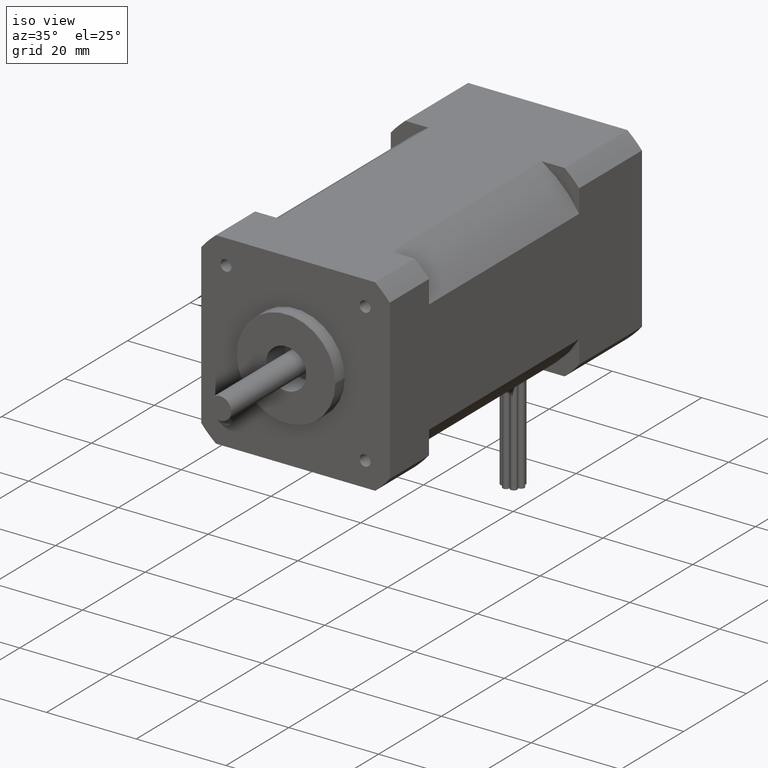
[diagram: clean part render]
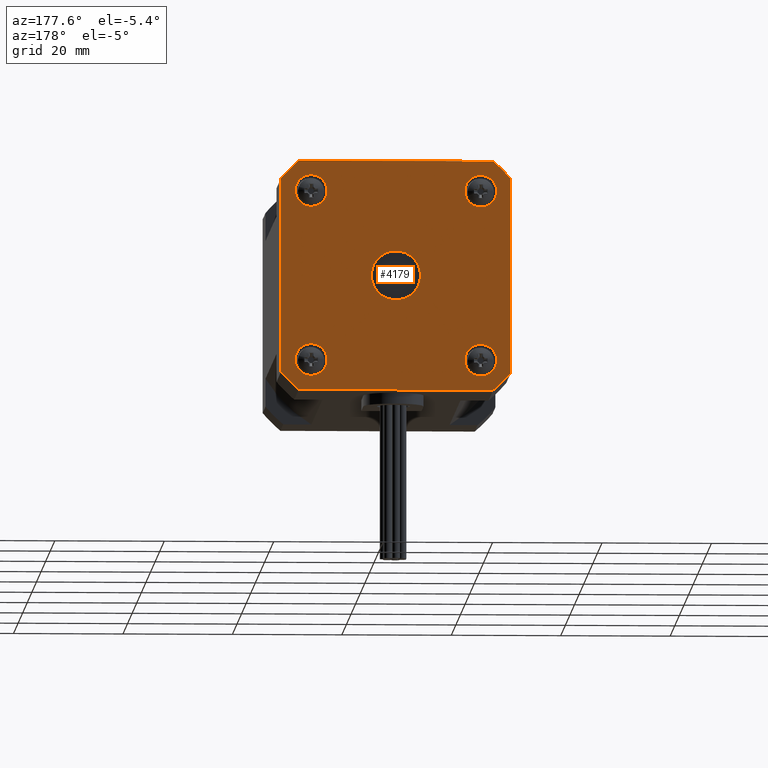
[diagram: tour spotlight — one face highlighted and labeled with its STEP entity id]
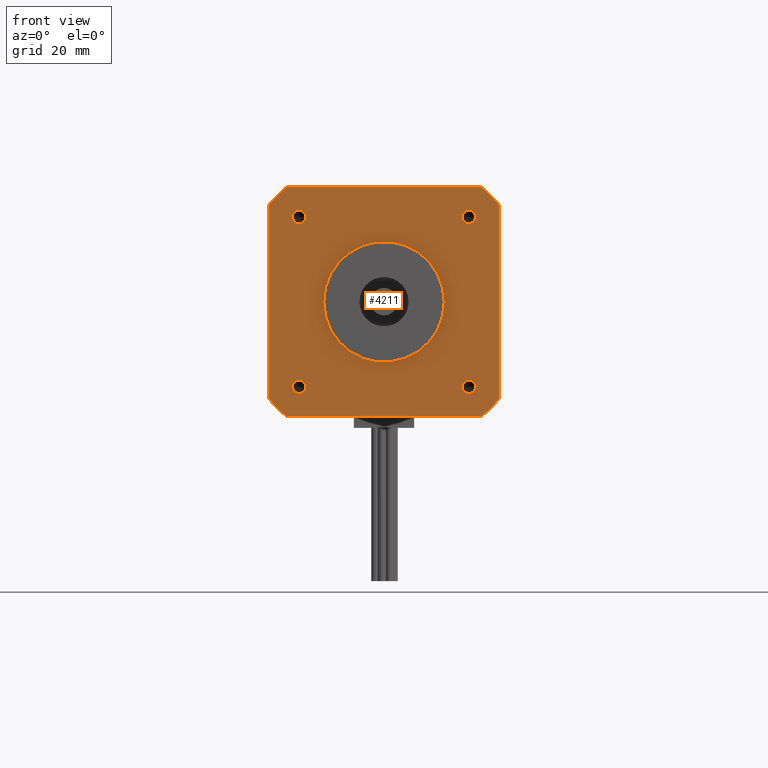
[diagram: tour spotlight — one face highlighted and labeled with its STEP entity id]
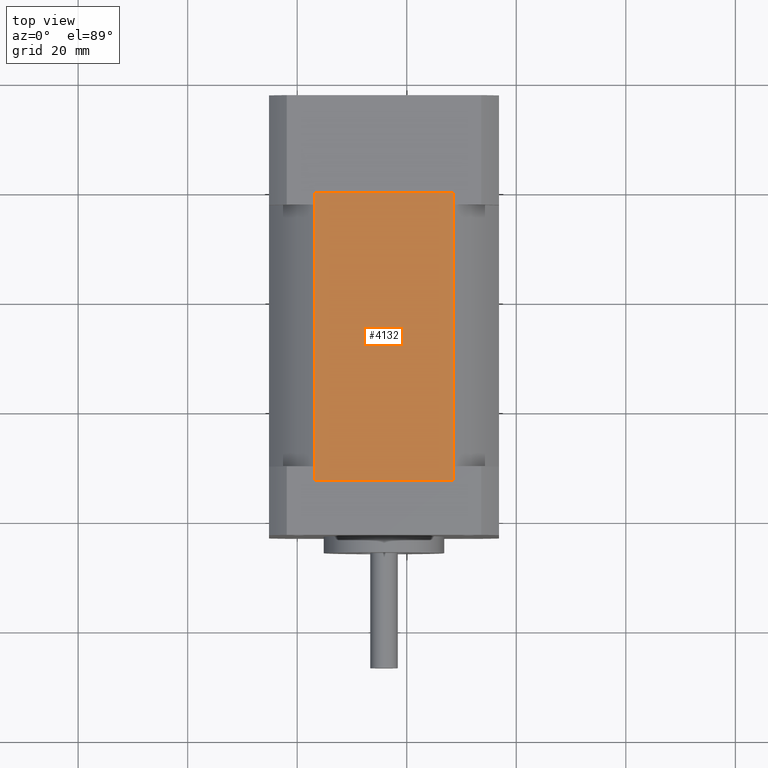
[diagram: tour spotlight — one face highlighted and labeled with its STEP entity id]
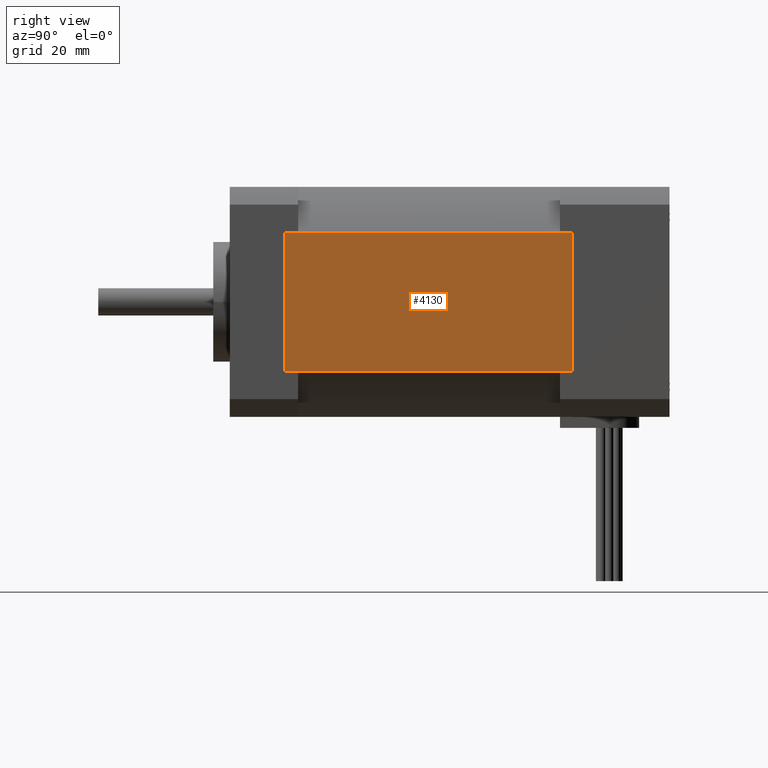
[diagram: tour spotlight — one face highlighted and labeled with its STEP entity id]
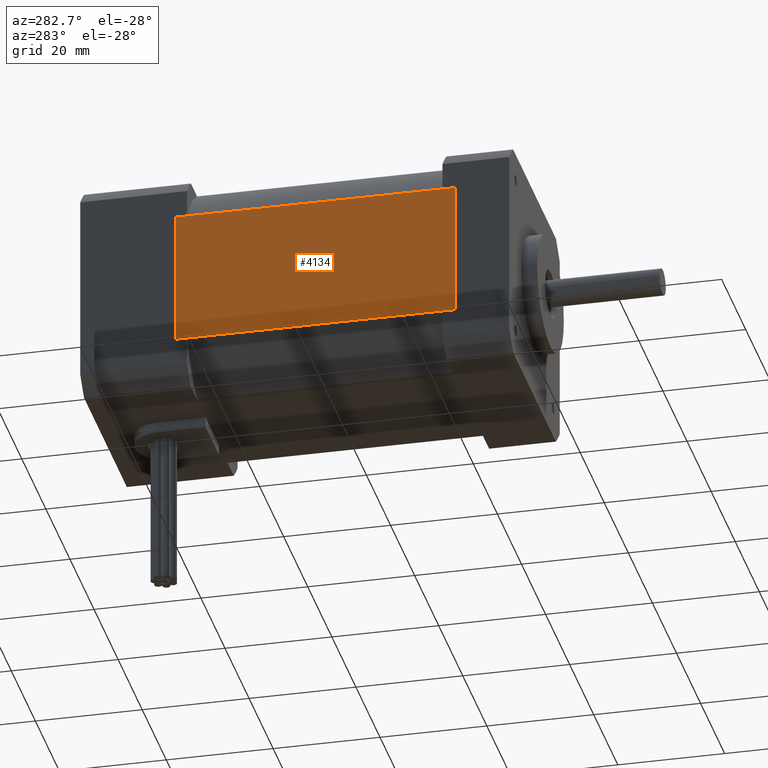
[diagram: tour spotlight — one face highlighted and labeled with its STEP entity id]
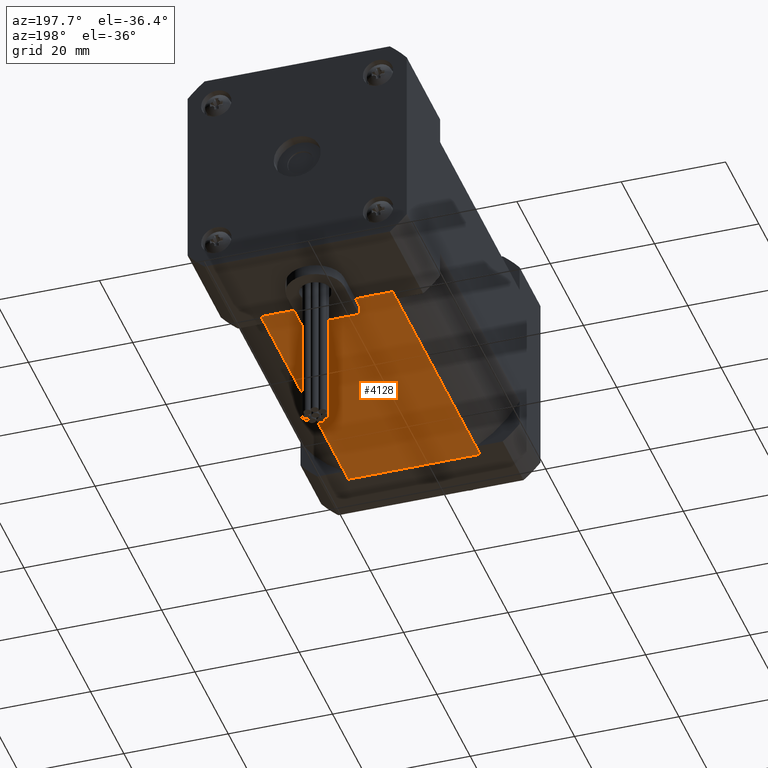
[diagram: tour spotlight — one face highlighted and labeled with its STEP entity id]
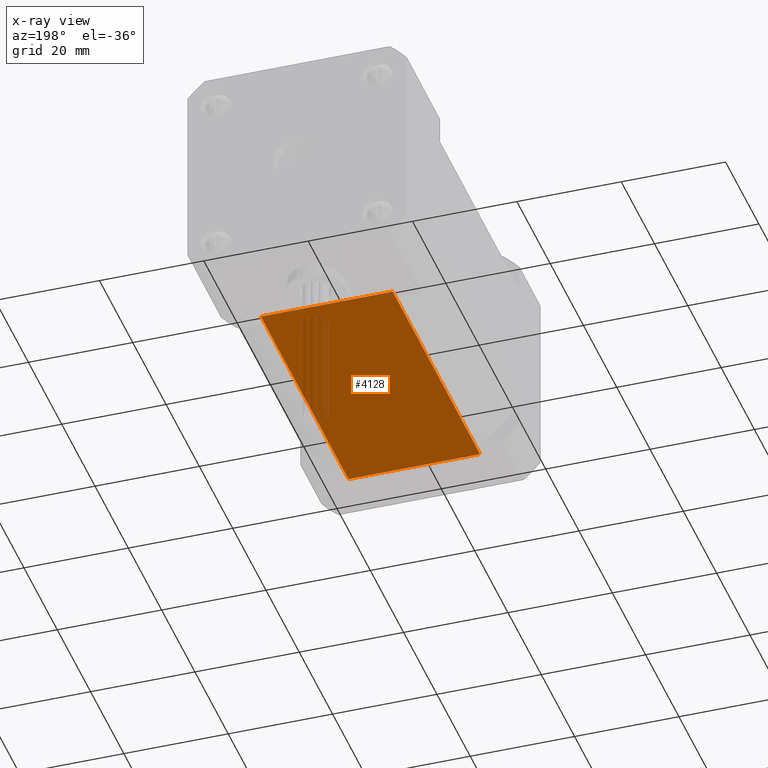
[diagram: x-ray of the same camera — body ghosted, this tour face saturated]
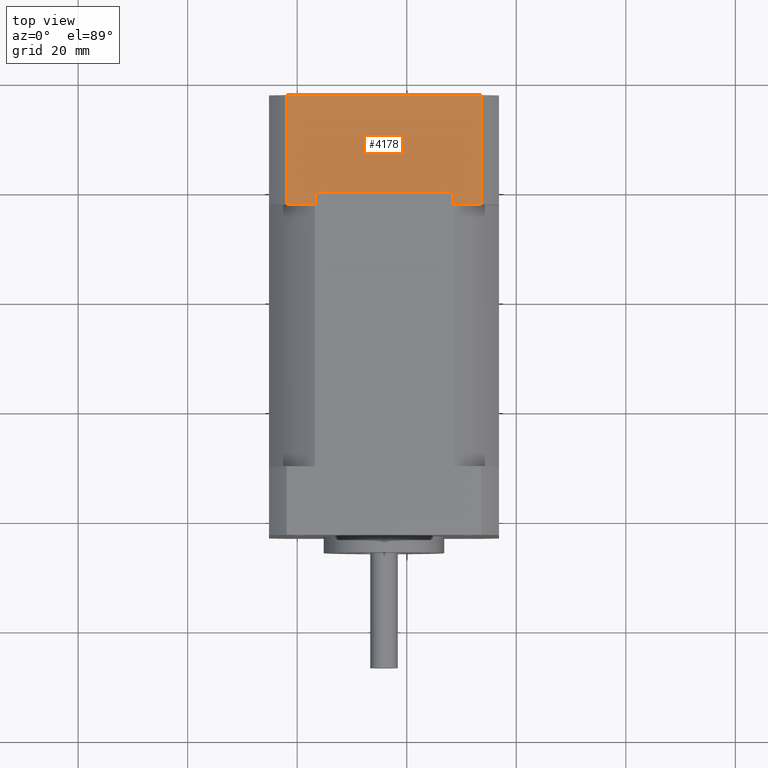
[diagram: tour spotlight — one face highlighted and labeled with its STEP entity id]
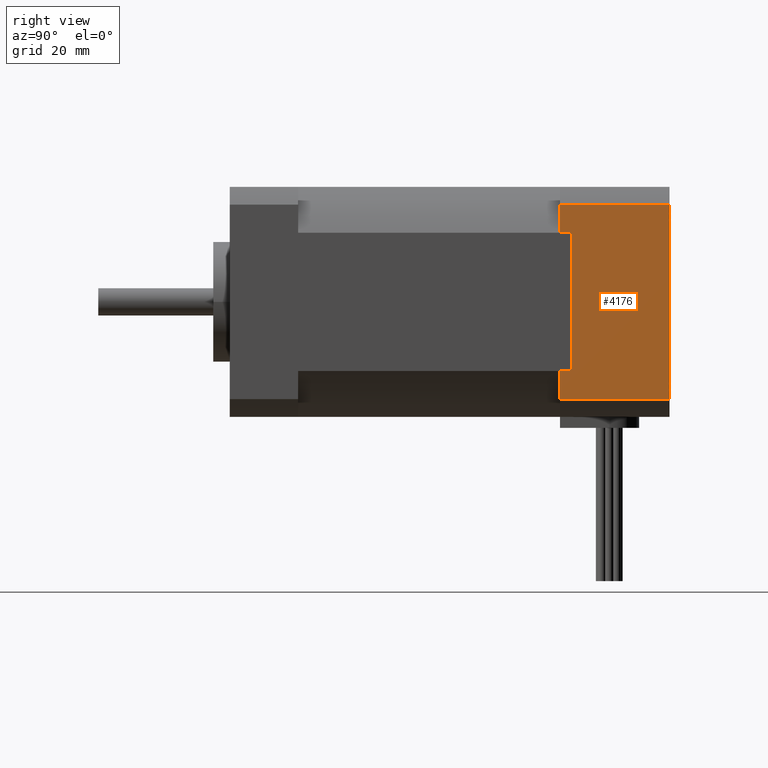
[diagram: tour spotlight — one face highlighted and labeled with its STEP entity id]
A machine part: a face-by-face anatomy tour. The part has 262 B-rep faces; the first image is the clean iso view, then the 8 largest visible faces are spotlighted one at a time (largest first), each with its STEP entity span.

Face 1 — auxiliary view, entity #4179. In plain terms, the highlighted planar face has unit normal (0, 1, -0).
Definition (entity closure, byte-faithful):
#224=PLANE('',#4510);
#374=LINE('',#6392,#596);
#379=LINE('',#6402,#601);
#388=LINE('',#6433,#610);
#391=LINE('',#6440,#613);
#596=VECTOR('',#5145,3.55105618091294);
#601=VECTOR('',#5152,3.55105618091294);
#610=VECTOR('',#5189,3.55105618091294);
#613=VECTOR('',#5198,3.55105618091294);
#800=FACE_BOUND('',#1202,.T.);
#801=FACE_BOUND('',#1203,.T.);
#802=FACE_BOUND('',#1204,.T.);
#803=FACE_BOUND('',#1205,.T.);
#804=FACE_BOUND('',#1206,.T.);
#913=FACE_OUTER_BOUND('',#1201,.T.);
#1201=EDGE_LOOP('',(#2885,#2886,#2887,#2888,#2889,#2890,#2891,#2892));
#1202=EDGE_LOOP('',(#2893));
#1203=EDGE_LOOP('',(#2894));
#1204=EDGE_LOOP('',(#2895));
#1205=EDGE_LOOP('',(#2896));
#1206=EDGE_LOOP('',(#2897));
#1488=CIRCLE('',#4447,0.29);
#1492=CIRCLE('',#4454,0.29);
#1496=CIRCLE('',#4461,0.29);
#1500=CIRCLE('',#4468,0.29);
#1503=CIRCLE('',#4473,0.45);
#1517=CIRCLE('',#4500,2.75);
#1518=CIRCLE('',#4502,2.75);
#1520=CIRCLE('',#4505,2.75);
#1521=CIRCLE('',#4508,2.75);
#1746=VERTEX_POINT('',#6295);
#1750=VERTEX_POINT('',#6306);
#1754=VERTEX_POINT('',#6317);
#1758=VERTEX_POINT('',#6328);
#1761=VERTEX_POINT('',#6336);
#1781=VERTEX_POINT('',#6389);
#1782=VERTEX_POINT('',#6391);
#1785=VERTEX_POINT('',#6399);
#1786=VERTEX_POINT('',#6401);
#1791=VERTEX_POINT('',#6419);
#1793=VERTEX_POINT('',#6427);
#1794=VERTEX_POINT('',#6432);
#1795=VERTEX_POINT('',#6436);
#2161=EDGE_CURVE('',#1746,#1746,#1488,.T.);
#2165=EDGE_CURVE('',#1750,#1750,#1492,.T.);
#2169=EDGE_CURVE('',#1754,#1754,#1496,.T.);
#2173=EDGE_CURVE('',#1758,#1758,#1500,.T.);
#2176=EDGE_CURVE('',#1761,#1761,#1503,.T.);
#2202=EDGE_CURVE('',#1782,#1781,#374,.T.);
#2207=EDGE_CURVE('',#1786,#1785,#379,.T.);
#2217=EDGE_CURVE('',#1785,#1791,#1517,.T.);
#2218=EDGE_CURVE('',#1781,#1786,#1518,.T.);
#2220=EDGE_CURVE('',#1793,#1782,#1520,.T.);
#2223=EDGE_CURVE('',#1794,#1793,#388,.T.);
#2225=EDGE_CURVE('',#1795,#1794,#1521,.T.);
#2227=EDGE_CURVE('',#1791,#1795,#391,.T.);
#2885=ORIENTED_EDGE('',*,*,#2227,.T.);
#2886=ORIENTED_EDGE('',*,*,#2225,.T.);
#2887=ORIENTED_EDGE('',*,*,#2223,.T.);
#2888=ORIENTED_EDGE('',*,*,#2220,.T.);
#2889=ORIENTED_EDGE('',*,*,#2202,.T.);
#2890=ORIENTED_EDGE('',*,*,#2218,.T.);
#2891=ORIENTED_EDGE('',*,*,#2207,.T.);
#2892=ORIENTED_EDGE('',*,*,#2217,.T.);
#2893=ORIENTED_EDGE('',*,*,#2161,.T.);
#2894=ORIENTED_EDGE('',*,*,#2165,.T.);
#2895=ORIENTED_EDGE('',*,*,#2169,.T.);
#2896=ORIENTED_EDGE('',*,*,#2173,.T.);
#2897=ORIENTED_EDGE('',*,*,#2176,.T.);
#4179=ADVANCED_FACE('',(#913,#800,#801,#802,#803,#804),#224,.T.);
#4447=AXIS2_PLACEMENT_3D('',#6296,#5040,#5041);
#4454=AXIS2_PLACEMENT_3D('',#6307,#5054,#5055);
#4461=AXIS2_PLACEMENT_3D('',#6318,#5068,#5069);
#4468=AXIS2_PLACEMENT_3D('',#6329,#5082,#5083);
#4473=AXIS2_PLACEMENT_3D('',#6337,#5092,#5093);
#4500=AXIS2_PLACEMENT_3D('',#6421,#5173,#5174);
#4502=AXIS2_PLACEMENT_3D('',#6423,#5177,#5178);
#4505=AXIS2_PLACEMENT_3D('',#6428,#5183,#5184);
#4508=AXIS2_PLACEMENT_3D('',#6437,#5193,#5194);
#4510=AXIS2_PLACEMENT_3D('',#6441,#5199,#5200);
#5040=DIRECTION('center_axis',(-1.45477499778469E-16,-1.,1.24501532695106E-16));
#5041=DIRECTION('ref_axis',(1.,-1.45477499778469E-16,-1.66533453693774E-16));
#5054=DIRECTION('center_axis',(-1.45477499778469E-16,-1.,1.24501532695106E-16));
#5055=DIRECTION('ref_axis',(1.,-1.45477499778469E-16,-1.66533453693774E-16));
#5068=DIRECTION('center_axis',(-1.45477499778469E-16,-1.,1.24501532695106E-16));
#5069=DIRECTION('ref_axis',(1.,-1.45477499778469E-16,-1.66533453693774E-16));
#5082=DIRECTION('center_axis',(-1.45477499778469E-16,-1.,1.24501532695106E-16));
#5083=DIRECTION('ref_axis',(1.,-1.45477499778469E-16,-1.66533453693774E-16));
#5092=DIRECTION('center_axis',(-1.45477499778469E-16,-1.,1.24501532695106E-16));
#5093=DIRECTION('ref_axis',(-1.,1.45477499778469E-16,1.66533453693774E-16));
#5145=DIRECTION('',(-1.,1.45477499778469E-16,1.66533453693774E-16));
#5152=DIRECTION('',(1.66533453693774E-16,1.24501532695106E-16,1.));
#5173=DIRECTION('center_axis',(1.45477499778469E-16,1.,-1.24501532695106E-16));
#5174=DIRECTION('ref_axis',(-0.763636363636364,1.91475897505393E-16,0.645646578347808));
#5177=DIRECTION('center_axis',(1.45477499778469E-16,1.,-1.24501532695106E-16));
#5178=DIRECTION('ref_axis',(-0.645646578347808,-1.14684773588243E-18,-0.763636363636364));
#5183=DIRECTION('center_axis',(1.45477499778469E-16,1.,-1.24501532695106E-16));
#5184=DIRECTION('ref_axis',(0.763636363636364,-1.91475897505393E-16,-0.645646578347808));
#5189=DIRECTION('',(-1.66533453693774E-16,-1.24501532695106E-16,-1.));
#5193=DIRECTION('center_axis',(1.45477499778469E-16,1.,-1.24501532695106E-16));
#5194=DIRECTION('ref_axis',(0.645646578347808,1.14684773588243E-18,0.763636363636364));
#5198=DIRECTION('',(1.,-1.45477499778469E-16,-1.66533453693774E-16));
#5199=DIRECTION('center_axis',(1.45477499778469E-16,1.,-1.24501532695106E-16));
#5200=DIRECTION('ref_axis',(2.22044604925031E-16,0.,1.));
#6295=CARTESIAN_POINT('',(-1.67525995329898,5.69264350961966,-0.102197207720415));
#6296=CARTESIAN_POINT('Origin',(-1.96525995329898,5.69264350961966,-0.102197207720415));
#6306=CARTESIAN_POINT('',(1.42474004670102,5.69264350961966,2.99780279227958));
#6307=CARTESIAN_POINT('Origin',(1.13474004670102,5.69264350961966,2.99780279227959));
#6317=CARTESIAN_POINT('',(-1.67525995329898,5.69264350961966,2.99780279227959));
#6318=CARTESIAN_POINT('Origin',(-1.96525995329898,5.69264350961966,2.99780279227959));
#6328=CARTESIAN_POINT('',(1.42474004670102,5.69264350961966,-0.102197207720415));
#6329=CARTESIAN_POINT('Origin',(1.13474004670102,5.69264350961966,-0.102197207720415));
#6336=CARTESIAN_POINT('',(0.0347400467010235,5.69264350961966,1.44780279227958));
#6337=CARTESIAN_POINT('Origin',(-0.415259953298976,5.69264350961966,1.44780279227959));
#6389=CARTESIAN_POINT('',(-2.19078804375545,5.69264350961966,-0.652197207720415));
#6391=CARTESIAN_POINT('',(1.36026813715749,5.69264350961966,-0.652197207720415));
#6392=CARTESIAN_POINT('',(1.36026813715749,5.69264350961966,-0.652197207720415));
#6399=CARTESIAN_POINT('',(-2.51525995329898,5.69264350961966,3.22333088273606));
#6401=CARTESIAN_POINT('',(-2.51525995329898,5.69264350961966,-0.327725298176885));
#6402=CARTESIAN_POINT('',(-2.51525995329898,5.69264350961966,-0.327725298176885));
#6419=CARTESIAN_POINT('',(-2.19078804375545,5.69264350961966,3.54780279227959));
#6421=CARTESIAN_POINT('Origin',(-0.415259953298976,5.69264350961966,1.44780279227959));
#6423=CARTESIAN_POINT('Origin',(-0.415259953298976,5.69264350961966,1.44780279227959));
#6427=CARTESIAN_POINT('',(1.68474004670102,5.69264350961966,-0.327725298176886));
#6428=CARTESIAN_POINT('Origin',(-0.415259953298976,5.69264350961966,1.44780279227959));
#6432=CARTESIAN_POINT('',(1.68474004670102,5.69264350961966,3.22333088273605));
#6433=CARTESIAN_POINT('',(1.68474004670102,5.69264350961966,3.22333088273605));
#6436=CARTESIAN_POINT('',(1.36026813715749,5.69264350961966,3.54780279227958));
#6437=CARTESIAN_POINT('Origin',(-0.415259953298976,5.69264350961966,1.44780279227959));
#6440=CARTESIAN_POINT('',(-2.19078804375545,5.69264350961966,3.54780279227959));
#6441=CARTESIAN_POINT('Origin',(0.595050716264059,5.69264350961966,2.45811346184262));

Face 2 — front view, entity #4211. In plain terms, the highlighted planar face has unit normal (0, 1, -0).
Definition (entity closure, byte-faithful):
#237=PLANE('',#4572);
#406=LINE('',#6524,#628);
#411=LINE('',#6534,#633);
#421=LINE('',#6568,#643);
#423=LINE('',#6579,#645);
#628=VECTOR('',#5289,3.55105618091294);
#633=VECTOR('',#5296,3.55105618091294);
#643=VECTOR('',#5334,3.55105618091294);
#645=VECTOR('',#5352,3.55105618091294);
#815=FACE_BOUND('',#1249,.T.);
#816=FACE_BOUND('',#1250,.T.);
#817=FACE_BOUND('',#1251,.T.);
#818=FACE_BOUND('',#1252,.T.);
#819=FACE_BOUND('',#1253,.T.);
#945=FACE_OUTER_BOUND('',#1248,.T.);
#1248=EDGE_LOOP('',(#3013,#3014,#3015,#3016,#3017,#3018,#3019,#3020));
#1249=EDGE_LOOP('',(#3021));
#1250=EDGE_LOOP('',(#3022));
#1251=EDGE_LOOP('',(#3023));
#1252=EDGE_LOOP('',(#3024));
#1253=EDGE_LOOP('',(#3025));
#1523=CIRCLE('',#4515,0.12295);
#1525=CIRCLE('',#4519,0.12295);
#1527=CIRCLE('',#4523,0.12295);
#1529=CIRCLE('',#4527,0.12295);
#1546=CIRCLE('',#4558,1.1);
#1547=CIRCLE('',#4561,2.75);
#1548=CIRCLE('',#4564,2.75);
#1550=CIRCLE('',#4567,2.75);
#1551=CIRCLE('',#4569,2.75);
#1797=VERTEX_POINT('',#6447);
#1799=VERTEX_POINT('',#6453);
#1801=VERTEX_POINT('',#6459);
#1803=VERTEX_POINT('',#6465);
#1825=VERTEX_POINT('',#6521);
#1826=VERTEX_POINT('',#6523);
#1829=VERTEX_POINT('',#6531);
#1830=VERTEX_POINT('',#6533);
#1836=VERTEX_POINT('',#6554);
#1837=VERTEX_POINT('',#6558);
#1838=VERTEX_POINT('',#6559);
#1840=VERTEX_POINT('',#6566);
#1841=VERTEX_POINT('',#6575);
#2229=EDGE_CURVE('',#1797,#1797,#1523,.T.);
#2231=EDGE_CURVE('',#1799,#1799,#1525,.T.);
#2233=EDGE_CURVE('',#1801,#1801,#1527,.T.);
#2235=EDGE_CURVE('',#1803,#1803,#1529,.T.);
#2262=EDGE_CURVE('',#1825,#1826,#406,.T.);
#2267=EDGE_CURVE('',#1829,#1830,#411,.T.);
#2277=EDGE_CURVE('',#1836,#1836,#1546,.T.);
#2278=EDGE_CURVE('',#1837,#1838,#1547,.T.);
#2283=EDGE_CURVE('',#1840,#1837,#421,.T.);
#2284=EDGE_CURVE('',#1826,#1840,#1548,.T.);
#2286=EDGE_CURVE('',#1830,#1825,#1550,.T.);
#2287=EDGE_CURVE('',#1841,#1829,#1551,.T.);
#2289=EDGE_CURVE('',#1838,#1841,#423,.T.);
#3013=ORIENTED_EDGE('',*,*,#2289,.F.);
#3014=ORIENTED_EDGE('',*,*,#2278,.F.);
#3015=ORIENTED_EDGE('',*,*,#2283,.F.);
#3016=ORIENTED_EDGE('',*,*,#2284,.F.);
#3017=ORIENTED_EDGE('',*,*,#2262,.F.);
#3018=ORIENTED_EDGE('',*,*,#2286,.F.);
#3019=ORIENTED_EDGE('',*,*,#2267,.F.);
#3020=ORIENTED_EDGE('',*,*,#2287,.F.);
#3021=ORIENTED_EDGE('',*,*,#2229,.T.);
#3022=ORIENTED_EDGE('',*,*,#2231,.T.);
#3023=ORIENTED_EDGE('',*,*,#2233,.T.);
#3024=ORIENTED_EDGE('',*,*,#2235,.T.);
#3025=ORIENTED_EDGE('',*,*,#2277,.T.);
#4211=ADVANCED_FACE('',(#945,#815,#816,#817,#818,#819),#237,.F.);
#4515=AXIS2_PLACEMENT_3D('',#6448,#5209,#5210);
#4519=AXIS2_PLACEMENT_3D('',#6454,#5217,#5218);
#4523=AXIS2_PLACEMENT_3D('',#6460,#5225,#5226);
#4527=AXIS2_PLACEMENT_3D('',#6466,#5233,#5234);
#4558=AXIS2_PLACEMENT_3D('',#6555,#5320,#5321);
#4561=AXIS2_PLACEMENT_3D('',#6560,#5326,#5327);
#4564=AXIS2_PLACEMENT_3D('',#6570,#5337,#5338);
#4567=AXIS2_PLACEMENT_3D('',#6573,#5343,#5344);
#4569=AXIS2_PLACEMENT_3D('',#6576,#5347,#5348);
#4572=AXIS2_PLACEMENT_3D('',#6581,#5355,#5356);
#5209=DIRECTION('center_axis',(1.45477499778469E-16,1.,-1.24501532695106E-16));
#5210=DIRECTION('ref_axis',(1.,-1.45477499778469E-16,1.65869361839074E-32));
#5217=DIRECTION('center_axis',(1.45477499778469E-16,1.,-1.24501532695106E-16));
#5218=DIRECTION('ref_axis',(1.,-1.45477499778469E-16,1.65869361839074E-32));
#5225=DIRECTION('center_axis',(1.45477499778469E-16,1.,-1.24501532695106E-16));
#5226=DIRECTION('ref_axis',(1.,-1.45477499778469E-16,1.65869361839074E-32));
#5233=DIRECTION('center_axis',(1.45477499778469E-16,1.,-1.24501532695106E-16));
#5234=DIRECTION('ref_axis',(1.,-1.45477499778469E-16,1.65869361839074E-32));
#5289=DIRECTION('',(-1.,1.45477499778469E-16,-1.65869361839074E-32));
#5296=DIRECTION('',(-1.52523551116391E-33,-1.24501532695106E-16,-1.));
#5320=DIRECTION('center_axis',(1.45477499778469E-16,1.,-1.24501532695106E-16));
#5321=DIRECTION('ref_axis',(-1.,1.45477499778469E-16,-1.65869361839074E-32));
#5326=DIRECTION('center_axis',(1.45477499778469E-16,1.,-1.24501532695106E-16));
#5327=DIRECTION('ref_axis',(-0.763636363636364,1.91475897505393E-16,0.645646578347807));
#5334=DIRECTION('',(1.52523551116391E-33,1.24501532695106E-16,1.));
#5337=DIRECTION('center_axis',(1.45477499778469E-16,1.,-1.24501532695106E-16));
#5338=DIRECTION('ref_axis',(-0.645646578347808,-1.14684773588236E-18,-0.763636363636364));
#5343=DIRECTION('center_axis',(1.45477499778469E-16,1.,-1.24501532695106E-16));
#5344=DIRECTION('ref_axis',(0.763636363636364,-1.91475897505393E-16,-0.645646578347808));
#5347=DIRECTION('center_axis',(1.45477499778469E-16,1.,-1.24501532695106E-16));
#5348=DIRECTION('ref_axis',(0.645646578347808,1.14684773588236E-18,0.763636363636364));
#5352=DIRECTION('',(1.,-1.45477499778469E-16,1.65869361839074E-32));
#5355=DIRECTION('center_axis',(1.45477499778469E-16,1.,-1.24501532695106E-16));
#5356=DIRECTION('ref_axis',(0.,0.,1.));
#6447=CARTESIAN_POINT('',(1.25769004670102,-2.33735649038034,-0.102197207720413));
#6448=CARTESIAN_POINT('Origin',(1.13474004670102,-2.33735649038034,-0.102197207720413));
#6453=CARTESIAN_POINT('',(-1.84230995329898,-2.33735649038034,2.99780279227959));
#6454=CARTESIAN_POINT('Origin',(-1.96525995329898,-2.33735649038034,2.99780279227959));
#6459=CARTESIAN_POINT('',(1.25769004670102,-2.33735649038034,2.99780279227959));
#6460=CARTESIAN_POINT('Origin',(1.13474004670102,-2.33735649038034,2.99780279227959));
#6465=CARTESIAN_POINT('',(-1.84230995329898,-2.33735649038034,-0.102197207720413));
#6466=CARTESIAN_POINT('Origin',(-1.96525995329898,-2.33735649038034,-0.102197207720413));
#6521=CARTESIAN_POINT('',(1.36026813715749,-2.33735649038034,-0.652197207720413));
#6523=CARTESIAN_POINT('',(-2.19078804375545,-2.33735649038034,-0.652197207720413));
#6524=CARTESIAN_POINT('',(1.36026813715749,-2.33735649038034,-0.652197207720413));
#6531=CARTESIAN_POINT('',(1.68474004670102,-2.33735649038034,3.22333088273606));
#6533=CARTESIAN_POINT('',(1.68474004670102,-2.33735649038034,-0.327725298176884));
#6534=CARTESIAN_POINT('',(1.68474004670102,-2.33735649038034,3.22333088273606));
#6554=CARTESIAN_POINT('',(0.684740046701023,-2.33735649038034,1.44780279227959));
#6555=CARTESIAN_POINT('Origin',(-0.415259953298978,-2.33735649038034,1.44780279227959));
#6558=CARTESIAN_POINT('',(-2.51525995329898,-2.33735649038034,3.22333088273606));
#6559=CARTESIAN_POINT('',(-2.19078804375545,-2.33735649038034,3.54780279227959));
#6560=CARTESIAN_POINT('Origin',(-0.415259953298978,-2.33735649038034,1.44780279227959));
#6566=CARTESIAN_POINT('',(-2.51525995329898,-2.33735649038034,-0.327725298176884));
#6568=CARTESIAN_POINT('',(-2.51525995329898,-2.33735649038034,-0.327725298176884));
#6570=CARTESIAN_POINT('Origin',(-0.415259953298978,-2.33735649038034,1.44780279227959));
#6573=CARTESIAN_POINT('Origin',(-0.415259953298978,-2.33735649038034,1.44780279227959));
#6575=CARTESIAN_POINT('',(1.36026813715749,-2.33735649038034,3.54780279227959));
#6576=CARTESIAN_POINT('Origin',(-0.415259953298978,-2.33735649038034,1.44780279227959));
#6579=CARTESIAN_POINT('',(-2.19078804375545,-2.33735649038034,3.54780279227959));
#6581=CARTESIAN_POINT('Origin',(-0.415259953298977,-2.33735649038034,1.44780279227959));

Face 3 — top view, entity #4132. In plain terms, the highlighted planar face has unit normal (0, 0, 1).
Definition (entity closure, byte-faithful):
#199=PLANE('',#4419);
#339=LINE('',#6227,#561);
#340=LINE('',#6230,#562);
#341=LINE('',#6232,#563);
#342=LINE('',#6233,#564);
#561=VECTOR('',#4964,5.25);
#562=VECTOR('',#4967,2.52388589282479);
#563=VECTOR('',#4968,2.52388589282479);
#564=VECTOR('',#4969,5.25);
#866=FACE_OUTER_BOUND('',#1129,.T.);
#1129=EDGE_LOOP('',(#2696,#2697,#2698,#2699));
#1724=VERTEX_POINT('',#6223);
#1725=VERTEX_POINT('',#6225);
#1726=VERTEX_POINT('',#6229);
#1727=VERTEX_POINT('',#6231);
#2131=EDGE_CURVE('',#1724,#1725,#339,.T.);
#2132=EDGE_CURVE('',#1726,#1724,#340,.T.);
#2133=EDGE_CURVE('',#1727,#1725,#341,.T.);
#2134=EDGE_CURVE('',#1726,#1727,#342,.T.);
#2696=ORIENTED_EDGE('',*,*,#2132,.T.);
#2697=ORIENTED_EDGE('',*,*,#2131,.T.);
#2698=ORIENTED_EDGE('',*,*,#2133,.F.);
#2699=ORIENTED_EDGE('',*,*,#2134,.F.);
#4132=ADVANCED_FACE('',(#866),#199,.T.);
#4419=AXIS2_PLACEMENT_3D('',#6228,#4965,#4966);
#4964=DIRECTION('',(-6.0767174219161E-33,1.,-1.24501532695106E-16));
#4965=DIRECTION('center_axis',(3.51909102636196E-16,1.24501532695106E-16,
1.));
#4966=DIRECTION('ref_axis',(1.,0.,-4.44089209850063E-16));
#4967=DIRECTION('',(1.,-3.77365052256496E-32,-3.51909102636196E-16));
#4968=DIRECTION('',(1.,-3.77365052256496E-32,-3.51909102636196E-16));
#4969=DIRECTION('',(-6.0767174219161E-33,1.,-1.24501532695106E-16));
#6223=CARTESIAN_POINT('',(0.846682993113419,-1.33735649038034,3.54780279227959));
#6225=CARTESIAN_POINT('',(0.846682993113419,3.91264350961966,3.54780279227959));
#6227=CARTESIAN_POINT('',(0.846682993113419,-1.33735649038034,3.54780279227959));
#6228=CARTESIAN_POINT('Origin',(-1.67720289971137,-1.33735649038034,3.54780279227959));
#6229=CARTESIAN_POINT('',(-1.67720289971137,-1.33735649038034,3.54780279227959));
#6230=CARTESIAN_POINT('',(-1.67720289971137,-1.33735649038034,3.54780279227959));
#6231=CARTESIAN_POINT('',(-1.67720289971137,3.91264350961966,3.54780279227959));
#6232=CARTESIAN_POINT('',(-1.67720289971137,3.91264350961966,3.54780279227959));
#6233=CARTESIAN_POINT('',(-1.67720289971137,-1.33735649038034,3.54780279227959));

Face 4 — right view, entity #4130. In plain terms, the highlighted planar face has unit normal (1, -0, -0).
Definition (entity closure, byte-faithful):
#198=PLANE('',#4415);
#335=LINE('',#6215,#557);
#336=LINE('',#6218,#558);
#337=LINE('',#6220,#559);
#338=LINE('',#6221,#560);
#557=VECTOR('',#4952,5.25);
#558=VECTOR('',#4955,2.52388589282479);
#559=VECTOR('',#4956,2.52388589282479);
#560=VECTOR('',#4957,5.25);
#864=FACE_OUTER_BOUND('',#1127,.T.);
#1127=EDGE_LOOP('',(#2688,#2689,#2690,#2691));
#1720=VERTEX_POINT('',#6211);
#1721=VERTEX_POINT('',#6213);
#1722=VERTEX_POINT('',#6217);
#1723=VERTEX_POINT('',#6219);
#2125=EDGE_CURVE('',#1720,#1721,#335,.T.);
#2126=EDGE_CURVE('',#1722,#1720,#336,.T.);
#2127=EDGE_CURVE('',#1723,#1721,#337,.T.);
#2128=EDGE_CURVE('',#1722,#1723,#338,.T.);
#2688=ORIENTED_EDGE('',*,*,#2126,.T.);
#2689=ORIENTED_EDGE('',*,*,#2125,.T.);
#2690=ORIENTED_EDGE('',*,*,#2127,.F.);
#2691=ORIENTED_EDGE('',*,*,#2128,.F.);
#4130=ADVANCED_FACE('',(#864),#198,.T.);
#4415=AXIS2_PLACEMENT_3D('',#6216,#4953,#4954);
#4952=DIRECTION('',(-6.0767174219161E-33,1.,-1.24501532695106E-16));
#4953=DIRECTION('center_axis',(1.,-3.77365052256497E-32,-3.51909102636196E-16));
#4954=DIRECTION('ref_axis',(-4.44089209850063E-16,-2.22044604925031E-16,
-1.));
#4955=DIRECTION('',(-3.51909102636196E-16,-1.24501532695106E-16,-1.));
#4956=DIRECTION('',(-3.51909102636196E-16,-1.24501532695106E-16,-1.));
#4957=DIRECTION('',(-6.0767174219161E-33,1.,-1.24501532695106E-16));
#6211=CARTESIAN_POINT('',(1.68474004670102,-1.33735649038034,0.185859845867191));
#6213=CARTESIAN_POINT('',(1.68474004670102,3.91264350961966,0.185859845867191));
#6215=CARTESIAN_POINT('',(1.68474004670102,-1.33735649038034,0.185859845867191));
#6216=CARTESIAN_POINT('Origin',(1.68474004670102,-1.33735649038034,2.70974573869198));
#6217=CARTESIAN_POINT('',(1.68474004670102,-1.33735649038034,2.70974573869198));
#6218=CARTESIAN_POINT('',(1.68474004670102,-1.33735649038034,2.70974573869198));
#6219=CARTESIAN_POINT('',(1.68474004670102,3.91264350961966,2.70974573869198));
#6220=CARTESIAN_POINT('',(1.68474004670102,3.91264350961966,2.70974573869198));
#6221=CARTESIAN_POINT('',(1.68474004670102,-1.33735649038034,2.70974573869198));

Face 5 — auxiliary view, entity #4134. In plain terms, the highlighted planar face has unit normal (-1, 0, 0).
Definition (entity closure, byte-faithful):
#200=PLANE('',#4423);
#330=LINE('',#6200,#552);
#343=LINE('',#6239,#565);
#344=LINE('',#6241,#566);
#345=LINE('',#6242,#567);
#552=VECTOR('',#4937,5.25);
#565=VECTOR('',#4976,5.25);
#566=VECTOR('',#4979,2.52388589282479);
#567=VECTOR('',#4980,2.52388589282479);
#868=FACE_OUTER_BOUND('',#1131,.T.);
#1131=EDGE_LOOP('',(#2704,#2705,#2706,#2707));
#1715=VERTEX_POINT('',#6197);
#1716=VERTEX_POINT('',#6199);
#1728=VERTEX_POINT('',#6235);
#1729=VERTEX_POINT('',#6237);
#2117=EDGE_CURVE('',#1715,#1716,#330,.T.);
#2137=EDGE_CURVE('',#1728,#1729,#343,.T.);
#2138=EDGE_CURVE('',#1715,#1728,#344,.T.);
#2139=EDGE_CURVE('',#1716,#1729,#345,.T.);
#2704=ORIENTED_EDGE('',*,*,#2138,.T.);
#2705=ORIENTED_EDGE('',*,*,#2137,.T.);
#2706=ORIENTED_EDGE('',*,*,#2139,.F.);
#2707=ORIENTED_EDGE('',*,*,#2117,.F.);
#4134=ADVANCED_FACE('',(#868),#200,.T.);
#4423=AXIS2_PLACEMENT_3D('',#6240,#4977,#4978);
#4937=DIRECTION('',(-6.0767174219161E-33,1.,-1.24501532695106E-16));
#4976=DIRECTION('',(-6.0767174219161E-33,1.,-1.24501532695106E-16));
#4977=DIRECTION('center_axis',(-1.,3.77365052256497E-32,3.51909102636196E-16));
#4978=DIRECTION('ref_axis',(4.44089209850063E-16,2.22044604925031E-16,1.));
#4979=DIRECTION('',(3.51909102636196E-16,1.24501532695106E-16,1.));
#4980=DIRECTION('',(3.51909102636196E-16,1.24501532695106E-16,1.));
#6197=CARTESIAN_POINT('',(-2.51525995329898,-1.33735649038034,0.185859845867192));
#6199=CARTESIAN_POINT('',(-2.51525995329898,3.91264350961966,0.185859845867191));
#6200=CARTESIAN_POINT('',(-2.51525995329898,-1.33735649038034,0.185859845867192));
#6235=CARTESIAN_POINT('',(-2.51525995329898,-1.33735649038034,2.70974573869198));
#6237=CARTESIAN_POINT('',(-2.51525995329898,3.91264350961966,2.70974573869198));
#6239=CARTESIAN_POINT('',(-2.51525995329898,-1.33735649038034,2.70974573869198));
#6240=CARTESIAN_POINT('Origin',(-2.51525995329898,-1.33735649038034,1.44780279227959));
#6241=CARTESIAN_POINT('',(-2.51525995329898,-1.33735649038034,0.185859845867192));
#6242=CARTESIAN_POINT('',(-2.51525995329898,3.91264350961966,0.185859845867191));

Face 6 — auxiliary view, entity #4128. An x-ray twin of the same camera follows (body ghosted, this face saturated) — the face is partly hidden behind the body. In plain terms, the highlighted planar face has unit normal (-0, -0, -1).
Definition (entity closure, byte-faithful):
#197=PLANE('',#4411);
#331=LINE('',#6203,#553);
#332=LINE('',#6206,#554);
#333=LINE('',#6208,#555);
#334=LINE('',#6209,#556);
#553=VECTOR('',#4940,5.25);
#554=VECTOR('',#4943,2.52388589282479);
#555=VECTOR('',#4944,2.52388589282479);
#556=VECTOR('',#4945,5.25);
#862=FACE_OUTER_BOUND('',#1125,.T.);
#1125=EDGE_LOOP('',(#2680,#2681,#2682,#2683));
#1714=VERTEX_POINT('',#6196);
#1717=VERTEX_POINT('',#6201);
#1718=VERTEX_POINT('',#6205);
#1719=VERTEX_POINT('',#6207);
#2119=EDGE_CURVE('',#1714,#1717,#331,.T.);
#2120=EDGE_CURVE('',#1718,#1714,#332,.T.);
#2121=EDGE_CURVE('',#1719,#1717,#333,.T.);
#2122=EDGE_CURVE('',#1718,#1719,#334,.T.);
#2680=ORIENTED_EDGE('',*,*,#2120,.T.);
#2681=ORIENTED_EDGE('',*,*,#2119,.T.);
#2682=ORIENTED_EDGE('',*,*,#2121,.F.);
#2683=ORIENTED_EDGE('',*,*,#2122,.F.);
#4128=ADVANCED_FACE('',(#862),#197,.T.);
#4411=AXIS2_PLACEMENT_3D('',#6204,#4941,#4942);
#4940=DIRECTION('',(-6.0767174219161E-33,1.,-1.24501532695106E-16));
#4941=DIRECTION('center_axis',(-1.75954551318098E-16,-1.24501532695106E-16,
-1.));
#4942=DIRECTION('ref_axis',(-1.,0.,2.22044604925031E-16));
#4943=DIRECTION('',(-1.,1.58298939018668E-32,1.75954551318098E-16));
#4944=DIRECTION('',(-1.,1.58298939018668E-32,1.75954551318098E-16));
#4945=DIRECTION('',(-6.0767174219161E-33,1.,-1.24501532695106E-16));
#6196=CARTESIAN_POINT('',(-1.67720289971137,-1.33735649038034,-0.652197207720413));
#6201=CARTESIAN_POINT('',(-1.67720289971137,3.91264350961966,-0.652197207720414));
#6203=CARTESIAN_POINT('',(-1.67720289971137,-1.33735649038034,-0.652197207720413));
#6204=CARTESIAN_POINT('Origin',(0.846682993113417,-1.33735649038034,-0.652197207720414));
#6205=CARTESIAN_POINT('',(0.846682993113417,-1.33735649038034,-0.652197207720414));
#6206=CARTESIAN_POINT('',(0.846682993113417,-1.33735649038034,-0.652197207720414));
#6207=CARTESIAN_POINT('',(0.846682993113417,3.91264350961966,-0.652197207720414));
#6208=CARTESIAN_POINT('',(0.846682993113417,3.91264350961966,-0.652197207720414));
#6209=CARTESIAN_POINT('',(0.846682993113417,-1.33735649038034,-0.652197207720414));

Face 7 — top view, entity #4178. In plain terms, the highlighted planar face has unit normal (0, 0, 1).
Definition (entity closure, byte-faithful):
#223=PLANE('',#4509);
#361=LINE('',#6354,#583);
#365=LINE('',#6366,#587);
#369=LINE('',#6379,#591);
#382=LINE('',#6408,#604);
#384=LINE('',#6417,#606);
#385=LINE('',#6420,#607);
#390=LINE('',#6438,#612);
#391=LINE('',#6440,#613);
#583=VECTOR('',#5110,2.52388589282479);
#587=VECTOR('',#5120,0.22);
#591=VECTOR('',#5134,0.22);
#604=VECTOR('',#5157,0.513585144044074);
#606=VECTOR('',#5169,0.513585144044074);
#607=VECTOR('',#5172,2.);
#612=VECTOR('',#5195,2.);
#613=VECTOR('',#5198,3.55105618091294);
#912=FACE_OUTER_BOUND('',#1200,.T.);
#1200=EDGE_LOOP('',(#2877,#2878,#2879,#2880,#2881,#2882,#2883,#2884));
#1767=VERTEX_POINT('',#6351);
#1768=VERTEX_POINT('',#6353);
#1773=VERTEX_POINT('',#6365);
#1777=VERTEX_POINT('',#6377);
#1788=VERTEX_POINT('',#6407);
#1790=VERTEX_POINT('',#6415);
#1791=VERTEX_POINT('',#6419);
#1795=VERTEX_POINT('',#6436);
#2183=EDGE_CURVE('',#1768,#1767,#361,.T.);
#2189=EDGE_CURVE('',#1773,#1768,#365,.T.);
#2196=EDGE_CURVE('',#1767,#1777,#369,.T.);
#2210=EDGE_CURVE('',#1788,#1773,#382,.T.);
#2215=EDGE_CURVE('',#1777,#1790,#384,.T.);
#2216=EDGE_CURVE('',#1788,#1791,#385,.T.);
#2226=EDGE_CURVE('',#1790,#1795,#390,.T.);
#2227=EDGE_CURVE('',#1791,#1795,#391,.T.);
#2877=ORIENTED_EDGE('',*,*,#2196,.T.);
#2878=ORIENTED_EDGE('',*,*,#2215,.T.);
#2879=ORIENTED_EDGE('',*,*,#2226,.T.);
#2880=ORIENTED_EDGE('',*,*,#2227,.F.);
#2881=ORIENTED_EDGE('',*,*,#2216,.F.);
#2882=ORIENTED_EDGE('',*,*,#2210,.T.);
#2883=ORIENTED_EDGE('',*,*,#2189,.T.);
#2884=ORIENTED_EDGE('',*,*,#2183,.T.);
#4178=ADVANCED_FACE('',(#912),#223,.T.);
#4509=AXIS2_PLACEMENT_3D('',#6439,#5196,#5197);
#5110=DIRECTION('',(1.,-1.45477499778469E-16,-1.66533453693774E-16));
#5120=DIRECTION('',(1.45477499778469E-16,1.,-1.24501532695106E-16));
#5134=DIRECTION('',(-1.45477499778469E-16,-1.,1.24501532695106E-16));
#5157=DIRECTION('',(1.,-1.45477499778469E-16,-1.66533453693774E-16));
#5169=DIRECTION('',(1.,-1.45477499778469E-16,-1.66533453693774E-16));
#5172=DIRECTION('',(1.45477499778469E-16,1.,-1.24501532695106E-16));
#5195=DIRECTION('',(1.45477499778469E-16,1.,-1.24501532695106E-16));
#5196=DIRECTION('center_axis',(1.66533453693774E-16,1.24501532695106E-16,
1.));
#5197=DIRECTION('ref_axis',(1.,0.,0.));
#5198=DIRECTION('',(1.,-1.45477499778469E-16,-1.66533453693774E-16));
#6351=CARTESIAN_POINT('',(0.846682993113421,3.91264350961966,3.54780279227958));
#6353=CARTESIAN_POINT('',(-1.67720289971137,3.91264350961966,3.54780279227959));
#6354=CARTESIAN_POINT('',(-0.415259953298976,3.91264350961966,3.54780279227959));
#6365=CARTESIAN_POINT('',(-1.67720289971137,3.69264350961966,3.54780279227959));
#6366=CARTESIAN_POINT('',(-1.67720289971137,3.69264350961966,3.54780279227959));
#6377=CARTESIAN_POINT('',(0.846682993113421,3.69264350961966,3.54780279227959));
#6379=CARTESIAN_POINT('',(0.846682993113421,3.69264350961966,3.54780279227959));
#6407=CARTESIAN_POINT('',(-2.19078804375545,3.69264350961966,3.54780279227959));
#6408=CARTESIAN_POINT('',(-2.19078804375545,3.69264350961966,3.54780279227959));
#6415=CARTESIAN_POINT('',(1.36026813715749,3.69264350961966,3.54780279227958));
#6417=CARTESIAN_POINT('',(-2.19078804375545,3.69264350961966,3.54780279227959));
#6419=CARTESIAN_POINT('',(-2.19078804375545,5.69264350961966,3.54780279227959));
#6420=CARTESIAN_POINT('',(-2.19078804375545,3.69264350961966,3.54780279227959));
#6436=CARTESIAN_POINT('',(1.36026813715749,5.69264350961966,3.54780279227958));
#6438=CARTESIAN_POINT('',(1.36026813715749,3.69264350961966,3.54780279227958));
#6439=CARTESIAN_POINT('Origin',(-0.415259953298976,3.69264350961966,3.54780279227959));
#6440=CARTESIAN_POINT('',(-2.19078804375545,5.69264350961966,3.54780279227959));

Face 8 — right view, entity #4176. In plain terms, the highlighted planar face has unit normal (1, -0, -0).
Definition (entity closure, byte-faithful):
#222=PLANE('',#4506);
#360=LINE('',#6350,#582);
#368=LINE('',#6376,#590);
#371=LINE('',#6385,#593);
#383=LINE('',#6414,#605);
#386=LINE('',#6429,#608);
#387=LINE('',#6431,#609);
#388=LINE('',#6433,#610);
#389=LINE('',#6434,#611);
#582=VECTOR('',#5107,2.52388589282479);
#590=VECTOR('',#5131,0.22);
#593=VECTOR('',#5140,0.22);
#605=VECTOR('',#5166,0.513585144044074);
#608=VECTOR('',#5185,2.);
#609=VECTOR('',#5188,0.513585144044074);
#610=VECTOR('',#5189,3.55105618091294);
#611=VECTOR('',#5190,2.);
#910=FACE_OUTER_BOUND('',#1198,.T.);
#1198=EDGE_LOOP('',(#2865,#2866,#2867,#2868,#2869,#2870,#2871,#2872));
#1765=VERTEX_POINT('',#6347);
#1766=VERTEX_POINT('',#6349);
#1776=VERTEX_POINT('',#6375);
#1779=VERTEX_POINT('',#6383);
#1789=VERTEX_POINT('',#6413);
#1792=VERTEX_POINT('',#6425);
#1793=VERTEX_POINT('',#6427);
#1794=VERTEX_POINT('',#6432);
#2181=EDGE_CURVE('',#1766,#1765,#360,.T.);
#2194=EDGE_CURVE('',#1776,#1766,#368,.T.);
#2199=EDGE_CURVE('',#1765,#1779,#371,.T.);
#2213=EDGE_CURVE('',#1789,#1776,#383,.T.);
#2221=EDGE_CURVE('',#1792,#1793,#386,.T.);
#2222=EDGE_CURVE('',#1779,#1792,#387,.T.);
#2223=EDGE_CURVE('',#1794,#1793,#388,.T.);
#2224=EDGE_CURVE('',#1789,#1794,#389,.T.);
#2865=ORIENTED_EDGE('',*,*,#2199,.T.);
#2866=ORIENTED_EDGE('',*,*,#2222,.T.);
#2867=ORIENTED_EDGE('',*,*,#2221,.T.);
#2868=ORIENTED_EDGE('',*,*,#2223,.F.);
#2869=ORIENTED_EDGE('',*,*,#2224,.F.);
#2870=ORIENTED_EDGE('',*,*,#2213,.T.);
#2871=ORIENTED_EDGE('',*,*,#2194,.T.);
#2872=ORIENTED_EDGE('',*,*,#2181,.T.);
#4176=ADVANCED_FACE('',(#910),#222,.T.);
#4506=AXIS2_PLACEMENT_3D('',#6430,#5186,#5187);
#5107=DIRECTION('',(-1.66533453693774E-16,-1.24501532695106E-16,-1.));
#5131=DIRECTION('',(1.45477499778469E-16,1.,-1.24501532695106E-16));
#5140=DIRECTION('',(-1.45477499778469E-16,-1.,1.24501532695106E-16));
#5166=DIRECTION('',(-1.66533453693774E-16,-1.24501532695106E-16,-1.));
#5185=DIRECTION('',(1.45477499778469E-16,1.,-1.24501532695106E-16));
#5186=DIRECTION('center_axis',(1.,-1.45477499778469E-16,-1.66533453693774E-16));
#5187=DIRECTION('ref_axis',(-2.22044604925031E-16,0.,-1.));
#5188=DIRECTION('',(-1.66533453693774E-16,-1.24501532695106E-16,-1.));
#5189=DIRECTION('',(-1.66533453693774E-16,-1.24501532695106E-16,-1.));
#5190=DIRECTION('',(1.45477499778469E-16,1.,-1.24501532695106E-16));
#6347=CARTESIAN_POINT('',(1.68474004670102,3.91264350961966,0.185859845867188));
#6349=CARTESIAN_POINT('',(1.68474004670102,3.91264350961966,2.70974573869198));
#6350=CARTESIAN_POINT('',(1.68474004670102,3.91264350961966,2.33556683750782));
#6375=CARTESIAN_POINT('',(1.68474004670102,3.69264350961966,2.70974573869198));
#6376=CARTESIAN_POINT('',(1.68474004670102,3.69264350961966,2.70974573869198));
#6383=CARTESIAN_POINT('',(1.68474004670102,3.69264350961966,0.185859845867188));
#6385=CARTESIAN_POINT('',(1.68474004670102,3.69264350961966,0.185859845867188));
#6413=CARTESIAN_POINT('',(1.68474004670102,3.69264350961966,3.22333088273606));
#6414=CARTESIAN_POINT('',(1.68474004670102,3.69264350961966,3.22333088273606));
#6425=CARTESIAN_POINT('',(1.68474004670102,3.69264350961966,-0.327725298176885));
#6427=CARTESIAN_POINT('',(1.68474004670102,5.69264350961966,-0.327725298176886));
#6429=CARTESIAN_POINT('',(1.68474004670102,3.69264350961966,-0.327725298176885));
#6430=CARTESIAN_POINT('Origin',(1.68474004670102,3.69264350961966,3.22333088273606));
#6431=CARTESIAN_POINT('',(1.68474004670102,3.69264350961966,3.22333088273606));
#6432=CARTESIAN_POINT('',(1.68474004670102,5.69264350961966,3.22333088273605));
#6433=CARTESIAN_POINT('',(1.68474004670102,5.69264350961966,3.22333088273605));
#6434=CARTESIAN_POINT('',(1.68474004670102,3.69264350961966,3.22333088273606));